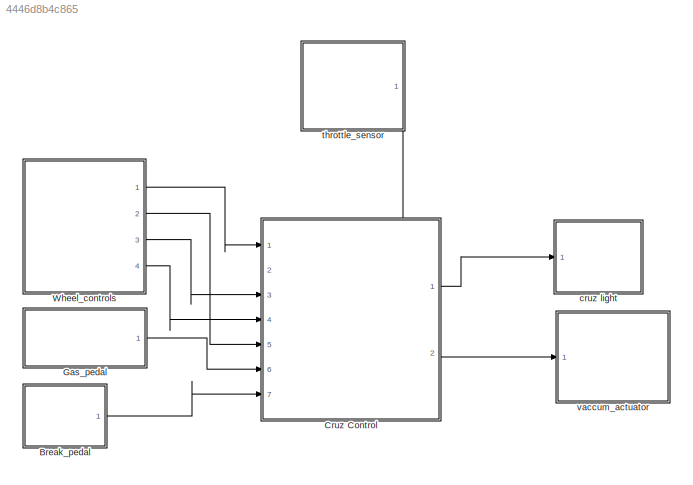
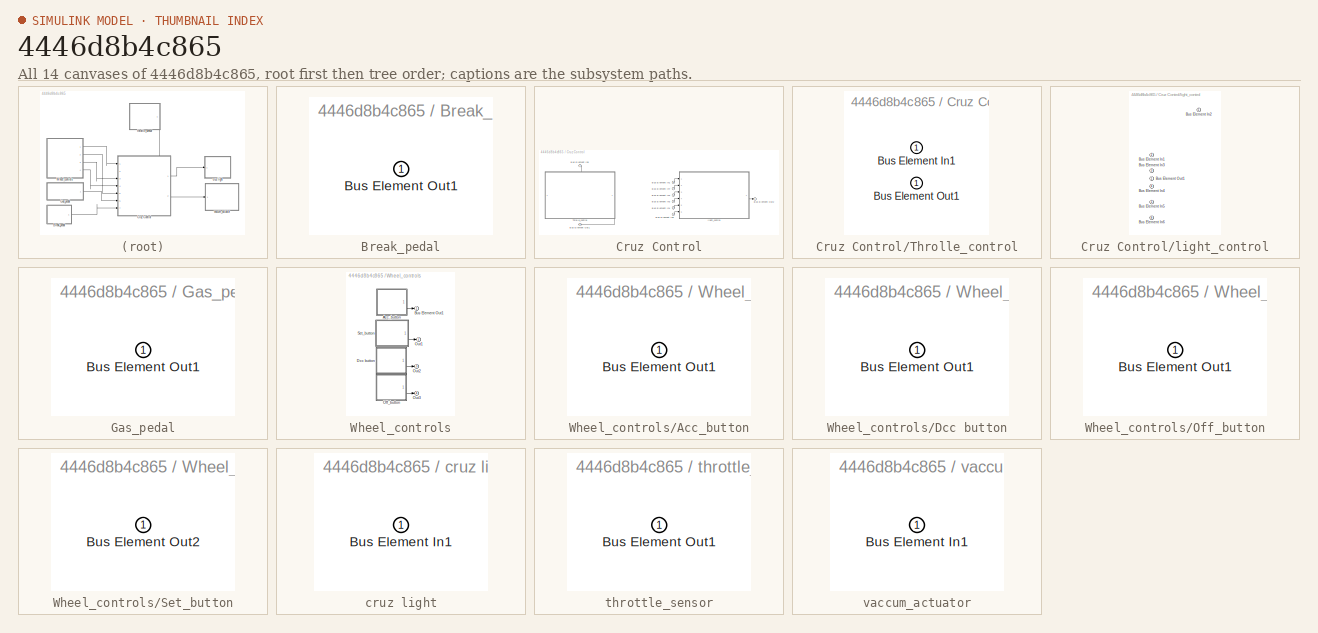
[diagram: thumbnail index - all 14 canvases of the model, root first then tree order]
MODEL slx_4446d8b4c865
KIND model
CONFIG AbsTol = auto
CONFIG EnableMultiTasking = off
CONFIG FixedStep = auto
CONFIG MaxStep = auto
CONFIG MinStep = auto
CONFIG RelTol = 1e-3
CONFIG SampleTimeConstraint = Unconstrained
CONFIG SolverName = VariableStepAuto
CONFIG StartTime = 0.0
CONFIG StopTime = 10.0
BLOCK [SubSystem] Break_pedal
  PortSchema = {"entries":[{"content":{"headerSize":26,"margin":15,"minimumSpacing":25,"sides":[{"content":{"connectorIds":[]},"type":"ConnectorPlacement.EquallySpacedRectSide","uuid":"6472313b-455b-4d2f-9eaa-19f0e43a9d41"},{"content":{"connectorIds":["Out1"],"side":"RIGHT"},"type":"ConnectorPlacement.EquallySpacedRectSide","uuid":"0bb4b84f-a849-43c7-b807-c30cbc689ce2"},{"content":{"connectorIds":[],"side":"TOP"...<+283ch>  <repeated x5 — deduplicated; at blocks: Break_pedal, Gas_pedal, Acc_button, Dcc button, Off_button>
  Ports = [0, 1]
  RequestExecContextInheritance = off
BLOCK [Outport] Break_pedal/Bus Element Out1
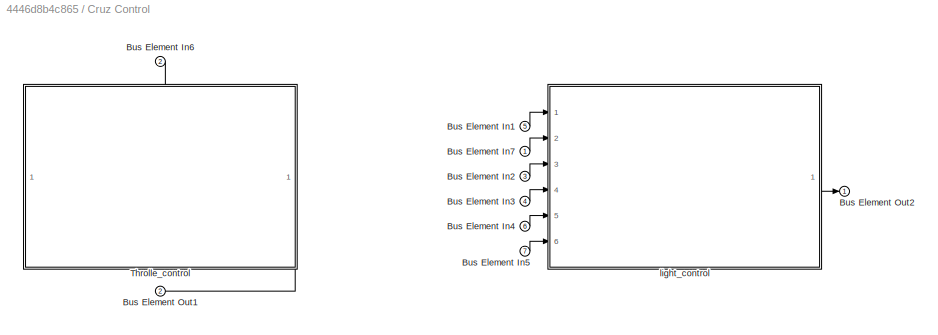
BLOCK [SubSystem] Cruz Control
  PortSchema = {"entries":[{"content":{"headerSize":26,"margin":15,"minimumSpacing":25,"sides":[{"content":{"connectorIds":["In1","In5","In3","In4","In6","In7"]},"type":"ConnectorPlacement.EquallySpacedRectSide","uuid":"6472313b-455b-4d2f-9eaa-19f0e43a9d41"},{"content":{"connectorIds":["Out1","Out2"],"side":"RIGHT"},"type":"ConnectorPlacement.EquallySpacedRectSide","uuid":"0bb4b84f-a849-43c7-b807-c30cbc689ce2"},...<+474ch>
  Ports = [7, 2]
  RequestExecContextInheritance = off
BLOCK [Inport] Cruz Control/Bus Element In1
  Port = 5
BLOCK [Inport] Cruz Control/Bus Element In2
  Port = 3
BLOCK [Inport] Cruz Control/Bus Element In3
  Port = 4
BLOCK [Inport] Cruz Control/Bus Element In4
  Port = 6
BLOCK [Inport] Cruz Control/Bus Element In5
  Port = 7
BLOCK [Inport] Cruz Control/Bus Element In6
  Port = 2
BLOCK [Inport] Cruz Control/Bus Element In7
BLOCK [Outport] Cruz Control/Bus Element Out1
  Port = 2
BLOCK [Outport] Cruz Control/Bus Element Out2
BLOCK [SubSystem] Cruz Control/Throlle_control
  PortSchema = {"entries":[{"content":{"headerSize":26,"margin":15,"minimumSpacing":25,"sides":[{"content":{"connectorIds":[]},"type":"ConnectorPlacement.EquallySpacedRectSide","uuid":"6472313b-455b-4d2f-9eaa-19f0e43a9d41"},{"content":{"connectorIds":[],"side":"RIGHT"},"type":"ConnectorPlacement.EquallySpacedRectSide","uuid":"0bb4b84f-a849-43c7-b807-c30cbc689ce2"},{"content":{"connectorIds":["In1"],"side":"TOP"}...<+432ch>
  Ports = [1, 1]
  RequestExecContextInheritance = off
BLOCK [Inport] Cruz Control/Throlle_control/Bus Element In1
BLOCK [Outport] Cruz Control/Throlle_control/Bus Element Out1
BLOCK [SubSystem] Cruz Control/light_control
  PortSchema = {"entries":[{"content":{"headerSize":26,"margin":15,"minimumSpacing":25,"sides":[{"content":{"connectorIds":["In1","In2","In3","In4","In5","In6"]},"type":"ConnectorPlacement.EquallySpacedRectSide","uuid":"6472313b-455b-4d2f-9eaa-19f0e43a9d41"},{"content":{"connectorIds":["Out1"],"side":"RIGHT"},"type":"ConnectorPlacement.EquallySpacedRectSide","uuid":"0bb4b84f-a849-43c7-b807-c30cbc689ce2"},{"conte...<+318ch>
  Ports = [6, 1]
  RequestExecContextInheritance = off
BLOCK [Inport] Cruz Control/light_control/Bus Element In1
  Port = 2
BLOCK [Inport] Cruz Control/light_control/Bus Element In2
BLOCK [Inport] Cruz Control/light_control/Bus Element In3
  Port = 3
BLOCK [Inport] Cruz Control/light_control/Bus Element In4
  Port = 4
BLOCK [Inport] Cruz Control/light_control/Bus Element In5
  Port = 5
BLOCK [Inport] Cruz Control/light_control/Bus Element In6
  Port = 6
BLOCK [Outport] Cruz Control/light_control/Bus Element Out1
BLOCK [SubSystem] Gas_pedal
  Ports = [0, 1]
  RequestExecContextInheritance = off
BLOCK [Outport] Gas_pedal/Bus Element Out1
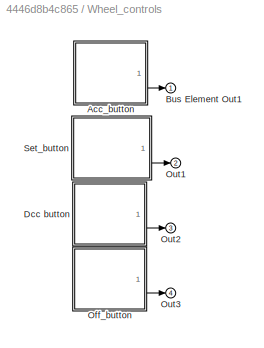
BLOCK [SubSystem] Wheel_controls
  PortSchema = {"entries":[{"content":{"headerSize":26,"margin":15,"minimumSpacing":25,"sides":[{"content":{"connectorIds":[]},"type":"ConnectorPlacement.EquallySpacedRectSide","uuid":"af031d74-65d2-4252-81e5-6d9a1fd8149f"},{"content":{"connectorIds":["Out1","Out2","Out3","Out4"],"side":"RIGHT"},"type":"ConnectorPlacement.EquallySpacedRectSide","uuid":"daede40a-d3c3-4ef5-9610-a569ab521095"},{"content":{"connecto...<+304ch>
  Ports = [0, 4]
  RequestExecContextInheritance = off
BLOCK [SubSystem] Wheel_controls/Acc_button
  Ports = [0, 1]
  RequestExecContextInheritance = off
BLOCK [Outport] Wheel_controls/Acc_button/Bus Element Out1
BLOCK [Outport] Wheel_controls/Bus Element Out1
BLOCK [SubSystem] Wheel_controls/Dcc button
  Ports = [0, 1]
  RequestExecContextInheritance = off
BLOCK [Outport] Wheel_controls/Dcc button/Bus Element Out1
BLOCK [SubSystem] Wheel_controls/Off_button
  Ports = [0, 1]
  RequestExecContextInheritance = off
BLOCK [Outport] Wheel_controls/Off_button/Bus Element Out1
BLOCK [Outport] Wheel_controls/Out1
  Port = 2
BLOCK [Outport] Wheel_controls/Out2
  Port = 3
BLOCK [Outport] Wheel_controls/Out3
  Port = 4
BLOCK [SubSystem] Wheel_controls/Set_button
  PortSchema = {"entries":[{"content":{"headerSize":26,"margin":15,"minimumSpacing":25,"sides":[{"content":{"connectorIds":[]},"type":"ConnectorPlacement.EquallySpacedRectSide","uuid":"6472313b-455b-4d2f-9eaa-19f0e43a9d41"},{"content":{"connectorIds":["Out1"],"side":"RIGHT"},"type":"ConnectorPlacement.EquallySpacedRectSide","uuid":"0bb4b84f-a849-43c7-b807-c30cbc689ce2"},{"content":{"connectorIds":[],"side":"TOP"...<+427ch>
  Ports = [0, 1]
  RequestExecContextInheritance = off
BLOCK [Outport] Wheel_controls/Set_button/Bus Element Out2
BLOCK [SubSystem] cruz light
  PortSchema = {"entries":[{"content":{"headerSize":26,"margin":15,"minimumSpacing":25,"sides":[{"content":{"connectorIds":["In1"]},"type":"ConnectorPlacement.EquallySpacedRectSide","uuid":"6472313b-455b-4d2f-9eaa-19f0e43a9d41"},{"content":{"connectorIds":[],"side":"RIGHT"},"type":"ConnectorPlacement.EquallySpacedRectSide","uuid":"0bb4b84f-a849-43c7-b807-c30cbc689ce2"},{"content":{"connectorIds":[],"side":"TOP"}...<+282ch>
  Ports = [1]
  RequestExecContextInheritance = off
BLOCK [Inport] cruz light/Bus Element In1
BLOCK [SubSystem] throttle_sensor
  PortSchema = {"entries":[{"content":{"headerSize":26,"margin":15,"minimumSpacing":25,"sides":[{"content":{"connectorIds":[]},"type":"ConnectorPlacement.EquallySpacedRectSide","uuid":"6472313b-455b-4d2f-9eaa-19f0e43a9d41"},{"content":{"connectorIds":[],"side":"RIGHT"},"type":"ConnectorPlacement.EquallySpacedRectSide","uuid":"0bb4b84f-a849-43c7-b807-c30cbc689ce2"},{"content":{"connectorIds":[],"side":"TOP"},"typ...<+427ch>
  Ports = [0, 1]
  RequestExecContextInheritance = off
BLOCK [Outport] throttle_sensor/Bus Element Out1
BLOCK [SubSystem] vaccum_actuator
  PortSchema = {"entries":[{"content":{"headerSize":26,"margin":15,"minimumSpacing":25,"sides":[{"content":{"connectorIds":["In1"]},"type":"ConnectorPlacement.EquallySpacedRectSide","uuid":"6472313b-455b-4d2f-9eaa-19f0e43a9d41"},{"content":{"connectorIds":[],"side":"RIGHT"},"type":"ConnectorPlacement.EquallySpacedRectSide","uuid":"0bb4b84f-a849-43c7-b807-c30cbc689ce2"},{"content":{"connectorIds":[],"side":"TOP"}...<+282ch>
  Ports = [1]
  RequestExecContextInheritance = off
BLOCK [Inport] vaccum_actuator/Bus Element In1
LINE Break_pedal:1 -> Cruz Control:7
LINE Cruz Control/Bus Element In1:1 -> Cruz Control/light_control:1
LINE Cruz Control/Bus Element In2:1 -> Cruz Control/light_control:3
LINE Cruz Control/Bus Element In3:1 -> Cruz Control/light_control:4
LINE Cruz Control/Bus Element In4:1 -> Cruz Control/light_control:5
LINE Cruz Control/Bus Element In5:1 -> Cruz Control/light_control:6
LINE Cruz Control/Bus Element In6:1 -> Cruz Control/Throlle_control:1
LINE Cruz Control/Bus Element In7:1 -> Cruz Control/light_control:2
LINE Cruz Control/Throlle_control:1 -> Cruz Control/Bus Element Out1:1
LINE Cruz Control/light_control:1 -> Cruz Control/Bus Element Out2:1
LINE Cruz Control:1 -> cruz light:1
LINE Cruz Control:2 -> vaccum_actuator:1
LINE Gas_pedal:1 -> Cruz Control:6
LINE Wheel_controls/Acc_button:1 -> Wheel_controls/Bus Element Out1:1
LINE Wheel_controls/Dcc button:1 -> Wheel_controls/Out2:1
LINE Wheel_controls/Off_button:1 -> Wheel_controls/Out3:1
LINE Wheel_controls/Set_button:1 -> Wheel_controls/Out1:1
LINE Wheel_controls:1 -> Cruz Control:1
LINE Wheel_controls:2 -> Cruz Control:5
LINE Wheel_controls:3 -> Cruz Control:3
LINE Wheel_controls:4 -> Cruz Control:4
LINE throttle_sensor:1 -> Cruz Control:2
